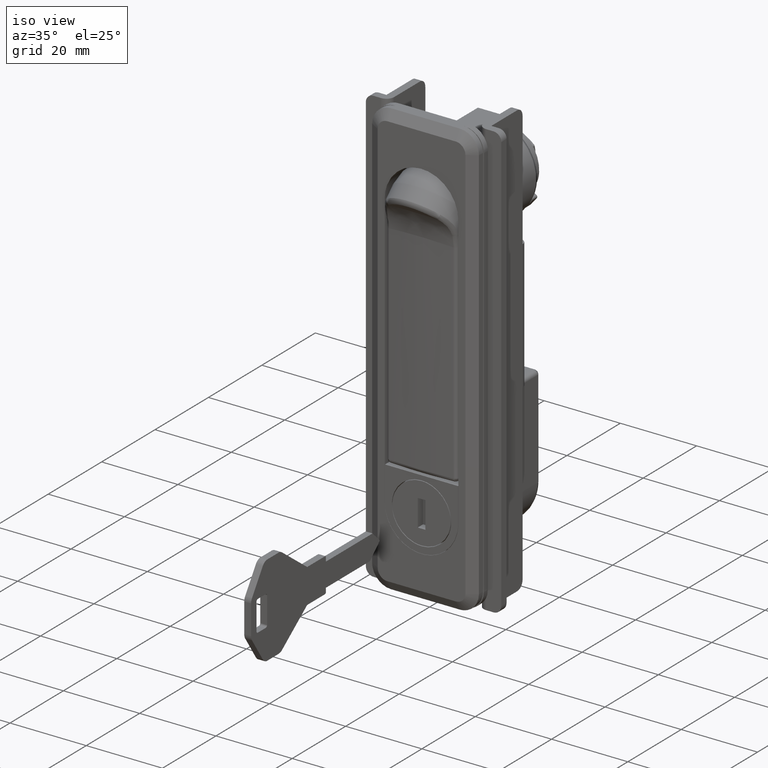
[diagram: clean part render]
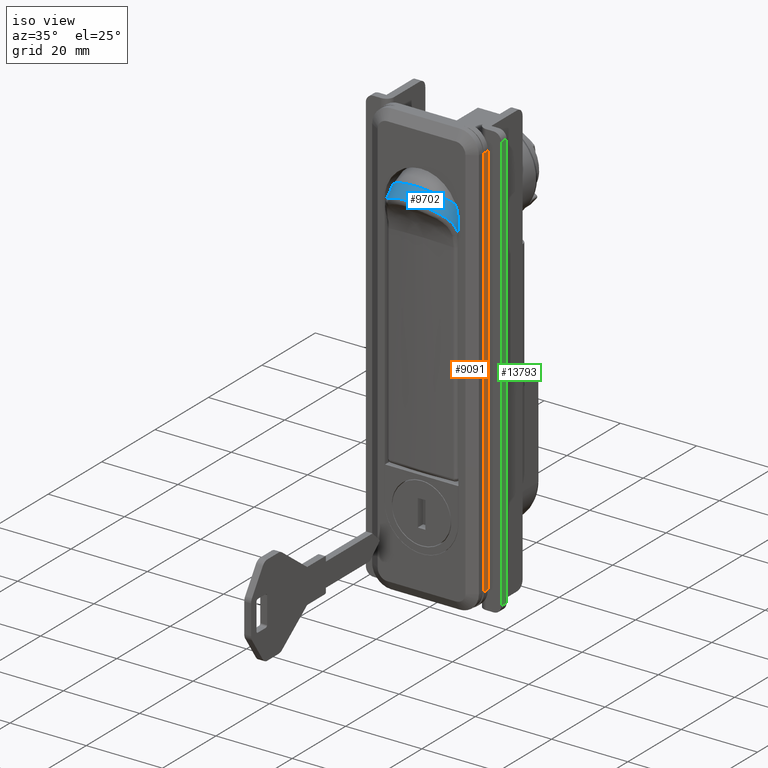
[diagram: same view with three faces highlighted in distinct colors, each labeled with its STEP entity id]
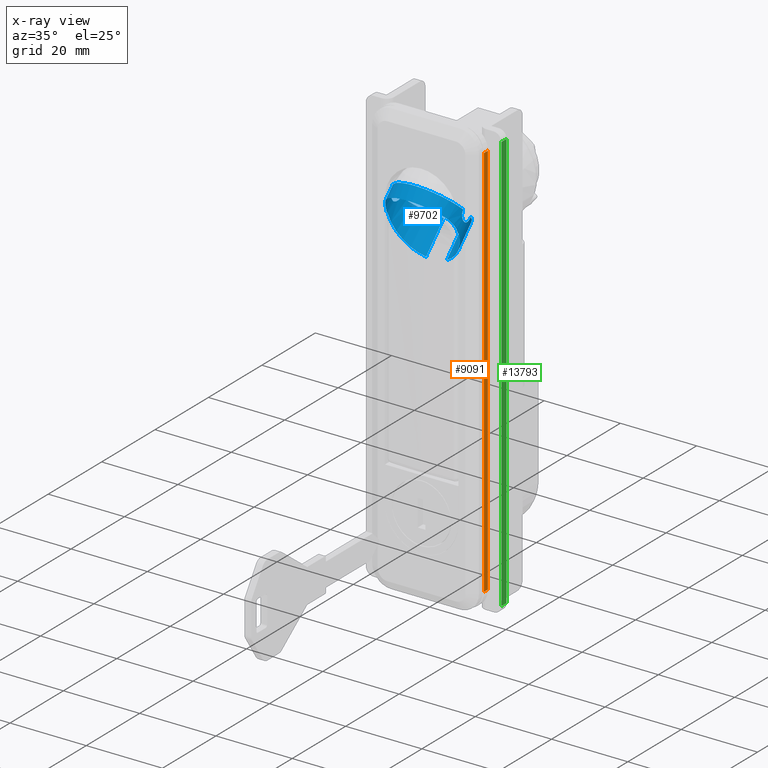
[diagram: x-ray of the same camera — body ghosted, the three highlighted faces saturated]
A machine part, iso view with three faces highlighted in distinct colors.
The next image is the same camera in x-ray (body ghosted, the three faces saturated) — at least one of them is partly hidden behind the body in this view.
Their STEP definitions:

[orange] entity #9091 — the highlighted face is a freeform B-spline surface patch.
#8704=CARTESIAN_POINT('',(0.0,-14.250000000000000,-88.0));
#8705=VERTEX_POINT('',#8704);
#8719=CARTESIAN_POINT('',(0.0,-14.250000000000000,16.0));
#8720=VERTEX_POINT('',#8719);
#8721=CARTESIAN_POINT('',(0.0,-14.250000000000000,-88.0));
#8722=CARTESIAN_POINT('',(0.0,-14.250000000000000,16.0));
#8723=QUASI_UNIFORM_CURVE('',1,(#8721,#8722),.UNSPECIFIED.,.F.,.U.);
#8724=EDGE_CURVE('',#8705,#8720,#8723,.T.);
#8846=CARTESIAN_POINT('',(1.499999999999946,-14.250000000000000,16.0));
#8847=VERTEX_POINT('',#8846);
#8861=CARTESIAN_POINT('',(1.499999999999946,-14.250000000000000,-88.0));
#8862=VERTEX_POINT('',#8861);
#8863=CARTESIAN_POINT('',(1.499999999999946,-14.250000000000000,-88.0));
#8864=CARTESIAN_POINT('',(1.499999999999946,-14.250000000000000,16.0));
#8865=QUASI_UNIFORM_CURVE('',1,(#8863,#8864),.UNSPECIFIED.,.F.,.U.);
#8866=EDGE_CURVE('',#8862,#8847,#8865,.T.);
#9062=CARTESIAN_POINT('',(1.499999999999946,-14.250000000000000,16.0));
#9063=CARTESIAN_POINT('',(0.0,-14.250000000000000,16.0));
#9064=QUASI_UNIFORM_CURVE('',1,(#9062,#9063),.UNSPECIFIED.,.F.,.U.);
#9065=EDGE_CURVE('',#8847,#8720,#9064,.T.);
#9076=CARTESIAN_POINT('',(-0.074924997092706,-14.250000000000000,21.194799798427820));
#9077=CARTESIAN_POINT('',(-0.074924997092706,-14.250000000000000,-93.194802587925196));
#9078=CARTESIAN_POINT('',(1.574925037325788,-14.250000000000000,21.194799798427820));
#9079=CARTESIAN_POINT('',(1.574925037325788,-14.250000000000000,-93.194802587925196));
#9080=B_SPLINE_SURFACE_WITH_KNOTS('',1,1,((#9076,#9078),(#9077,#9079)),.UNSPECIFIED.,.F.,.F.,.U.,(2,2),(2,2),(0.0,114.389602386353000),(0.041708334948495,0.958291687403247),.UNSPECIFIED.);
#9081=ORIENTED_EDGE('',*,*,#8724,.F.);
#9082=CARTESIAN_POINT('',(1.499999999999946,-14.250000000000000,-88.0));
#9083=CARTESIAN_POINT('',(0.0,-14.250000000000000,-88.0));
#9084=QUASI_UNIFORM_CURVE('',1,(#9082,#9083),.UNSPECIFIED.,.F.,.U.);
#9085=EDGE_CURVE('',#8862,#8705,#9084,.T.);
#9086=ORIENTED_EDGE('',*,*,#9085,.F.);
#9087=ORIENTED_EDGE('',*,*,#8866,.T.);
#9088=ORIENTED_EDGE('',*,*,#9065,.T.);
#9089=EDGE_LOOP('',(#9081,#9086,#9087,#9088));
#9090=FACE_OUTER_BOUND('',#9089,.T.);
#9091=ADVANCED_FACE('',(#9090),#9080,.T.);

[blue] entity #9702 — the highlighted face is a freeform B-spline surface patch.
#9387=CARTESIAN_POINT('',(7.107031272560636,-4.102957534490658,-5.774739402814862));
#9388=CARTESIAN_POINT('',(5.613714619475577,-8.427459105602878,-4.281422749729739));
#9389=CARTESIAN_POINT('',(2.257349569334404,-9.221770374373113,-0.925057699588430));
#9390=CARTESIAN_POINT('',(-4.263426796929898,-10.764965489170446,5.595718666676138));
#9391=CARTESIAN_POINT('',(-5.354630527297022,-1.543195114797333,6.686922397043308));
#9392=CARTESIAN_POINT('',(-6.445834257664147,7.678575259575780,7.778126127410477));
#9393=CARTESIAN_POINT('',(0.074942108600155,9.221770374373113,1.257349761145908));
#9394=CARTESIAN_POINT('',(6.595718474864460,10.764965489170446,-5.263426605118660));
#9395=CARTESIAN_POINT('',(7.686922205231582,1.543195114797333,-6.354630335485830));
#9396=CARTESIAN_POINT('',(0.124748359535416,-4.102957534490658,-12.757022315839794));
#9397=CARTESIAN_POINT('',(-1.368568293549646,-8.427459105602878,-11.263705662754676));
#9398=CARTESIAN_POINT('',(-4.724933343690816,-9.221770374373113,-7.907340612613366));
#9399=CARTESIAN_POINT('',(-11.245709709955117,-10.764965489170446,-1.386564246348798));
#9400=CARTESIAN_POINT('',(-12.336913440322240,-1.543195114797333,-0.295360515981629));
#9401=CARTESIAN_POINT('',(-13.428117170689367,7.678575259575780,0.795843214385541));
#9402=CARTESIAN_POINT('',(-6.907340804425065,9.221770374373113,-5.724933151879029));
#9403=CARTESIAN_POINT('',(-0.386564438160763,10.764965489170446,-12.245709518143595));
#9404=CARTESIAN_POINT('',(0.704639292206362,1.543195114797333,-13.336913248510770));
#9412=(BOUNDED_SURFACE()B_SPLINE_SURFACE(2,1,((#9387,#9396),(#9388,#9397),(#9389,#9398),(#9390,#9399),(#9391,#9400),(#9392,#9401),(#9393,#9402),(#9394,#9403),(#9395,#9404)),.UNSPECIFIED.,.F.,.F.,.U.)B_SPLINE_SURFACE_WITH_KNOTS((3,2,2,2,3),(2,2),(0.0,9.294952339652253,24.786539572406010,40.278126805159758,55.769714037913523),(0.0,9.874439191925989),.UNSPECIFIED.)GEOMETRIC_REPRESENTATION_ITEM()RATIONAL_B_SPLINE_SURFACE(((0.859411254969543,0.859411254969543),(0.824264068711928,0.824264068711928),(1.0,1.0),(0.707106781186548,0.707106781186548),(1.0,1.0),(0.707106781186548,0.707106781186548),(1.0,1.0),(0.707106781186548,0.707106781186548),(1.0,1.0)))REPRESENTATION_ITEM('')SURFACE());
#9413=CARTESIAN_POINT('',(6.940885581951187,-4.102957703211384,-5.940885581950830));
#9414=VERTEX_POINT('',#9413);
#9415=CARTESIAN_POINT('',(2.414213868110610,-9.133592174295300,-1.414213868110250));
#9416=VERTEX_POINT('',#9415);
#9417=CARTESIAN_POINT('',(6.940885581951187,-4.102957703211384,-5.940885581950830));
#9418=CARTESIAN_POINT('',(5.537744956479290,-8.166318806782531,-4.537744956478933));
#9419=CARTESIAN_POINT('',(2.414213868110608,-9.133592174295295,-1.414213868110251));
#9427=(BOUNDED_CURVE()B_SPLINE_CURVE(2,(#9417,#9418,#9419),.UNSPECIFIED.,.F.,.U.)B_SPLINE_CURVE_WITH_KNOTS((3,3),(0.670450609474140,1.0),.UNSPECIFIED.)CURVE()GEOMETRIC_REPRESENTATION_ITEM()RATIONAL_B_SPLINE_CURVE((0.900720068208981,0.854386070989554,1.0))REPRESENTATION_ITEM(''));
#9428=EDGE_CURVE('',#9414,#9416,#9427,.T.);
#9429=ORIENTED_EDGE('',*,*,#9428,.T.);
#9430=CARTESIAN_POINT('',(-0.414213359725439,-9.133592182482891,1.414213359725796));
#9431=VERTEX_POINT('',#9430);
#9432=CARTESIAN_POINT('',(-0.414213359725439,-9.133592182482891,1.414213359725796));
#9433=CARTESIAN_POINT('',(-0.460471421108768,-9.133591952254783,1.367955205915982));
#9434=CARTESIAN_POINT('',(-0.504614501735331,-9.134294817080452,1.319284640765174));
#9435=CARTESIAN_POINT('',(-0.588523405306179,-9.137133099552951,1.216951137928965));
#9436=CARTESIAN_POINT('',(-0.627735265913289,-9.139252865465123,1.163941595100474));
#9437=CARTESIAN_POINT('',(-0.736659020870733,-9.147511513319266,1.000574124153922));
#9438=CARTESIAN_POINT('',(-0.798093647315284,-9.155562279719019,0.885491694042924));
#9439=CARTESIAN_POINT('',(-0.873340630487527,-9.170775495962458,0.703493131412030));
#9440=CARTESIAN_POINT('',(-0.895599579317377,-9.176389119083146,0.641081153403403));
#9441=CARTESIAN_POINT('',(-0.933461384160538,-9.188261295152771,0.515761427234172));
#9442=CARTESIAN_POINT('',(-0.964964838712931,-9.200826246580741,0.389321836350614));
#9443=CARTESIAN_POINT('',(-0.984014128425927,-9.214390760109156,0.260652434712104));
#9444=CARTESIAN_POINT('',(-0.996780671376547,-9.228265251531013,0.130838418006757));
#9445=CARTESIAN_POINT('',(-1.000018911170903,-9.235390842854512,0.065053918924386));
#9446=CARTESIAN_POINT('',(-0.999960467632207,-9.256699182384180,-0.131888365669197));
#9447=CARTESIAN_POINT('',(-0.987122782937561,-9.270657931108158,-0.261282599531130));
#9448=CARTESIAN_POINT('',(-0.949173770381768,-9.290089996629952,-0.452715805698449));
#9449=CARTESIAN_POINT('',(-0.933385461188149,-9.296317278745793,-0.516080259273553));
#9450=CARTESIAN_POINT('',(-0.904843865665895,-9.305139396017477,-0.610449032395854));
#9451=CARTESIAN_POINT('',(-0.894491712444008,-9.307998906566981,-0.641856900761940));
#9452=CARTESIAN_POINT('',(-0.872370858683394,-9.313462756018529,-0.703780163438875));
#9453=CARTESIAN_POINT('',(-0.860584824732329,-9.316073888479348,-0.734364659806713));
#9454=CARTESIAN_POINT('',(-0.798084988514233,-9.328490208434053,-0.885434827013450));
#9455=CARTESIAN_POINT('',(-0.736765074323494,-9.336378104617072,-1.000418128581239));
#9456=CARTESIAN_POINT('',(-0.627660641663319,-9.344472881953212,-1.164051985115768));
#9457=CARTESIAN_POINT('',(-0.588244074227732,-9.346552346939205,-1.217314507201871));
#9458=CARTESIAN_POINT('',(-0.504339985946233,-9.349319229085879,-1.319596580899366));
#9459=CARTESIAN_POINT('',(-0.459913637980279,-9.350011722931695,-1.368590488650666));
#9460=CARTESIAN_POINT('',(-0.319256888622417,-9.349976103684744,-1.509011810071665));
#9461=CARTESIAN_POINT('',(-0.217886813742805,-9.347139566546289,-1.591790873036654));
#9462=CARTESIAN_POINT('',(-0.054919479280349,-9.339072423551686,-1.700413416651352));
#9463=CARTESIAN_POINT('',(0.001235463243762,-9.335747363732134,-1.734010520752055));
#9464=CARTESIAN_POINT('',(0.117293552208892,-9.327890298216486,-1.795870965536230));
#9465=CARTESIAN_POINT('',(0.177299054478293,-9.323344398660202,-1.824130719537319));
#9466=CARTESIAN_POINT('',(0.358978040799495,-9.308380924964443,-1.899013510434090));
#9467=CARTESIAN_POINT('',(0.483568235813575,-9.296560017001303,-1.936580834269289));
#9468=CARTESIAN_POINT('',(0.643669903907163,-9.280305376029634,-1.968271829216322));
#9469=CARTESIAN_POINT('',(0.675910514553652,-9.276980506264225,-1.973839557065862));
#9470=CARTESIAN_POINT('',(0.740841484671853,-9.270204102434436,-1.983409568932776));
#9471=CARTESIAN_POINT('',(0.773603978818678,-9.266744772655578,-1.987415747725484));
#9472=CARTESIAN_POINT('',(0.871581765009371,-9.256317208746044,-1.996951565982837));
#9473=CARTESIAN_POINT('',(0.936737798156744,-9.249274208841586,-2.000055985685856));
#9474=CARTESIAN_POINT('',(1.131763407651775,-9.228172674522993,-1.999885742626590));
#9475=CARTESIAN_POINT('',(1.261194439437405,-9.214136819165578,-1.987222427353137));
#9476=CARTESIAN_POINT('',(1.454560755308360,-9.194339755592941,-1.948767244357713));
#9477=CARTESIAN_POINT('',(1.518492369122235,-9.187994679538043,-1.932725497319438));
#9478=CARTESIAN_POINT('',(1.643425817448796,-9.176174943570196,-1.894799599611841));
#9479=CARTESIAN_POINT('',(1.766015895964191,-9.165164791177769,-1.850920764088506));
#9480=CARTESIAN_POINT('',(1.883984429881291,-9.156078406281294,-1.795234406280155));
#9481=CARTESIAN_POINT('',(1.999604193297977,-9.148109015128423,-1.733518564639712));
#9482=CARTESIAN_POINT('',(2.056554786249562,-9.144669137196123,-1.699419912350273));
#9483=CARTESIAN_POINT('',(2.220778899139755,-9.136404486986690,-1.589666695209347));
#9484=CARTESIAN_POINT('',(2.321696405324247,-9.133591746051042,-1.506731169828914));
#9485=CARTESIAN_POINT('',(2.414213868110610,-9.133592174295300,-1.414213868110250));
#9486=B_SPLINE_CURVE_WITH_KNOTS('',3,(#9432,#9433,#9434,#9435,#9436,#9437,#9438,#9439,#9440,#9441,#9442,#9443,#9444,#9445,#9446,#9447,#9448,#9449,#9450,#9451,#9452,#9453,#9454,#9455,#9456,#9457,#9458,#9459,#9460,#9461,#9462,#9463,#9464,#9465,#9466,#9467,#9468,#9469,#9470,#9471,#9472,#9473,#9474,#9475,#9476,#9477,#9478,#9479,#9480,#9481,#9482,#9483,#9484,#9485),.UNSPECIFIED.,.F.,.U.,(4,2,2,2,2,1,2,2,2,2,2,2,2,2,2,2,2,2,2,2,2,2,2,2,1,2,2,4),(0.0,0.031250000000000,0.062500000000000,0.125000000000001,0.156250000000001,0.187500000000001,0.218750000000001,0.250000000000001,0.312500000000001,0.343750000000001,0.359375000000001,0.375000000000001,0.437500000000002,0.468750000000002,0.500000000000002,0.562500000000002,0.593750000000002,0.625000000000002,0.687500000000002,0.703125000000002,0.718750000000002,0.750000000000002,0.812500000000001,0.843750000000001,0.875000000000001,0.906250000000001,0.937500000000001,1.0),.UNSPECIFIED.);
#9487=EDGE_CURVE('',#9431,#9416,#9486,.T.);
#9488=ORIENTED_EDGE('',*,*,#9487,.F.);
#9489=CARTESIAN_POINT('',(-0.414213321400329,9.133591949812070,1.414213321400474));
#9490=VERTEX_POINT('',#9489);
#9491=CARTESIAN_POINT('',(-0.414213321400329,9.133591949812070,1.414213321400474));
#9492=CARTESIAN_POINT('',(-5.611448451143156,7.524148695961170,6.611448451143511));
#9493=CARTESIAN_POINT('',(-5.611448452046887,1.588215E-009,6.611448452047243));
#9494=CARTESIAN_POINT('',(-5.611448452950619,-7.524148692784750,6.611448452950975));
#9495=CARTESIAN_POINT('',(-0.414213359725439,-9.133592182482891,1.414213359725796));
#9503=(BOUNDED_CURVE()B_SPLINE_CURVE(2,(#9491,#9492,#9493,#9494,#9495),.UNSPECIFIED.,.F.,.U.)B_SPLINE_CURVE_WITH_KNOTS((3,2,3),(0.0,0.500000000000000,1.0),.UNSPECIFIED.)CURVE()GEOMETRIC_REPRESENTATION_ITEM()RATIONAL_B_SPLINE_CURVE((1.0,0.779071145483128,1.0,0.779071145483128,1.0))REPRESENTATION_ITEM(''));
#9504=EDGE_CURVE('',#9490,#9431,#9503,.T.);
#9505=ORIENTED_EDGE('',*,*,#9504,.F.);
#9506=CARTESIAN_POINT('',(2.414213868110610,9.133592174295300,-1.414213868110250));
#9507=VERTEX_POINT('',#9506);
#9508=CARTESIAN_POINT('',(2.414213868110610,9.133592174295300,-1.414213868110250));
#9509=CARTESIAN_POINT('',(2.367955103226896,9.133591743607900,-1.460472487705086));
#9510=CARTESIAN_POINT('',(2.319283891190668,9.134294626555160,-1.504616101054610));
#9511=CARTESIAN_POINT('',(2.216948962416216,9.137132982776999,-1.588525958661796));
#9512=CARTESIAN_POINT('',(2.163938718602405,9.139252801307000,-1.627738181918827));
#9513=CARTESIAN_POINT('',(2.000568957228810,9.147511653540825,-1.736662879428226));
#9514=CARTESIAN_POINT('',(1.885484845064934,9.155562616163481,-1.798097866390851));
#9515=CARTESIAN_POINT('',(1.703483498314225,9.170776191602158,-1.873344941352954));
#9516=CARTESIAN_POINT('',(1.641070635302484,9.176389937869889,-1.895603808088241));
#9517=CARTESIAN_POINT('',(1.515749193849271,9.188262357209950,-1.933465284129359));
#9518=CARTESIAN_POINT('',(1.389307858092928,9.200827557612893,-1.964968265786341));
#9519=CARTESIAN_POINT('',(1.260636647784606,9.214392318273690,-1.984016776293791));
#9520=CARTESIAN_POINT('',(1.130820786320530,9.228267048705751,-1.996782368592477));
#9521=CARTESIAN_POINT('',(1.065035249929298,9.235392765973531,-2.000020039768987));
#9522=CARTESIAN_POINT('',(0.868090788036909,9.256701350625219,-1.999959638280248));
#9523=CARTESIAN_POINT('',(0.738695130902726,9.270660218539911,-1.987120386490184));
#9524=CARTESIAN_POINT('',(0.547259845840076,9.290092356898208,-1.949168513915894));
#9525=CARTESIAN_POINT('',(0.483894708746180,9.296319645543514,-1.933379165609851));
#9526=CARTESIAN_POINT('',(0.389524927736451,9.305141739513767,-1.904835856313950));
#9527=CARTESIAN_POINT('',(0.358116805429239,9.308001229211079,-1.894483128542005));
#9528=CARTESIAN_POINT('',(0.296193204736583,9.313465013113213,-1.872361155080965));
#9529=CARTESIAN_POINT('',(0.265608546026318,9.316076107750472,-1.860574547164415));
#9530=CARTESIAN_POINT('',(0.114537603790058,9.328492212221150,-1.798071764138572));
#9531=CARTESIAN_POINT('',(-0.000446203049111,9.336379852295423,-1.736749251329361));
#9532=CARTESIAN_POINT('',(-0.164080555014954,9.344474091538904,-1.627640384810734));
#9533=CARTESIAN_POINT('',(-0.217343224835563,9.346553349366578,-1.588222208657395));
#9534=CARTESIAN_POINT('',(-0.319624949117949,9.349319756811669,-1.504315195097979));
#9535=CARTESIAN_POINT('',(-0.368619996733159,9.350011992730716,-1.459885957156416));
#9536=CARTESIAN_POINT('',(-0.509036251500612,9.349975542816845,-1.319228648625208));
#9537=CARTESIAN_POINT('',(-0.591812312845454,9.347138551239741,-1.217858472442598));
#9538=CARTESIAN_POINT('',(-0.700430716195058,9.339070856503904,-1.054891249622808));
#9539=CARTESIAN_POINT('',(-0.734026502016925,9.335745634537604,-0.998736389286827));
#9540=CARTESIAN_POINT('',(-0.795884412092778,9.327888286145592,-0.882678539311256));
#9541=CARTESIAN_POINT('',(-0.824142814614935,9.323342285855025,-0.822673466015974));
#9542=CARTESIAN_POINT('',(-0.899021836604427,9.308378599635333,-0.640995964058720));
#9543=CARTESIAN_POINT('',(-0.936587018296682,9.296557646944532,-0.516406865211420));
#9544=CARTESIAN_POINT('',(-0.968275669890666,9.280303039310470,-0.356306665524123));
#9545=CARTESIAN_POINT('',(-0.973842946144116,9.276978180720855,-0.324066353573832));
#9546=CARTESIAN_POINT('',(-0.983412086993763,9.270201807612537,-0.259135990369861));
#9547=CARTESIAN_POINT('',(-0.987417837308038,9.266742503236817,-0.226373860455286));
#9548=CARTESIAN_POINT('',(-0.996952426938288,9.256315046751702,-0.128397357085556));
#9549=CARTESIAN_POINT('',(-1.000056124824040,9.249272132301046,-0.063242174691249));
#9550=CARTESIAN_POINT('',(-0.999883966734452,9.228170883256261,0.131780892753446));
#9551=CARTESIAN_POINT('',(-0.987219704823989,9.214135256475833,0.261210243300165));
#9552=CARTESIAN_POINT('',(-0.948763523597763,9.194338551192598,0.454574049167681));
#9553=CARTESIAN_POINT('',(-0.932721568835529,9.187993617012866,0.518504627009796));
#9554=CARTESIAN_POINT('',(-0.894795395359920,9.176174138045194,0.643436210631766));
#9555=CARTESIAN_POINT('',(-0.850916442693726,9.165164231670957,0.766024484298118));
#9556=CARTESIAN_POINT('',(-0.795230263398114,9.156078058961906,0.883991323367068));
#9557=CARTESIAN_POINT('',(-0.733514745937342,9.148108857285935,0.999609445490350));
#9558=CARTESIAN_POINT('',(-0.699416333114273,9.144669063746630,1.056559233363503));
#9559=CARTESIAN_POINT('',(-0.589664119469018,9.136404623116897,1.220780960968154));
#9560=CARTESIAN_POINT('',(-0.506729518769714,9.133591954693804,1.321697092502792));
#9561=CARTESIAN_POINT('',(-0.414213321400329,9.133591949812072,1.414213321400474));
#9562=B_SPLINE_CURVE_WITH_KNOTS('',3,(#9508,#9509,#9510,#9511,#9512,#9513,#9514,#9515,#9516,#9517,#9518,#9519,#9520,#9521,#9522,#9523,#9524,#9525,#9526,#9527,#9528,#9529,#9530,#9531,#9532,#9533,#9534,#9535,#9536,#9537,#9538,#9539,#9540,#9541,#9542,#9543,#9544,#9545,#9546,#9547,#9548,#9549,#9550,#9551,#9552,#9553,#9554,#9555,#9556,#9557,#9558,#9559,#9560,#9561),.UNSPECIFIED.,.F.,.U.,(4,2,2,2,2,1,2,2,2,2,2,2,2,2,2,2,2,2,2,2,2,2,2,2,1,2,2,4),(0.0,0.031250000000000,0.062500000000000,0.124999999999999,0.156249999999999,0.187499999999999,0.218749999999999,0.249999999999999,0.312499999999999,0.343749999999999,0.359374999999999,0.374999999999999,0.437499999999999,0.468749999999999,0.499999999999999,0.562499999999999,0.593749999999999,0.624999999999999,0.687500000000000,0.703125000000000,0.718750000000000,0.750000000000000,0.812500000000000,0.843750000000000,0.875000000000000,0.906250000000000,0.937500000000000,1.0),.UNSPECIFIED.);
#9563=EDGE_CURVE('',#9507,#9490,#9562,.T.);
#9564=ORIENTED_EDGE('',*,*,#9563,.F.);
#9565=CARTESIAN_POINT('',(7.520776553025343,1.543195181851260,-6.520776553024986));
#9566=VERTEX_POINT('',#9565);
#9567=CARTESIAN_POINT('',(2.414213868110608,9.133592174295295,-1.414213868110251));
#9568=CARTESIAN_POINT('',(6.782687427572426,7.780793687196534,-5.782687427572068));
#9569=CARTESIAN_POINT('',(7.520776553025343,1.543195181851260,-6.520776553024986));
#9577=(BOUNDED_CURVE()B_SPLINE_CURVE(2,(#9567,#9568,#9569),.UNSPECIFIED.,.F.,.U.)B_SPLINE_CURVE_WITH_KNOTS((3,3),(0.0,0.435615634405700),.UNSPECIFIED.)CURVE()GEOMETRIC_REPRESENTATION_ITEM()RATIONAL_B_SPLINE_CURVE((1.0,0.807519886585211,0.950429160033080))REPRESENTATION_ITEM(''));
#9578=EDGE_CURVE('',#9507,#9566,#9577,.T.);
#9579=ORIENTED_EDGE('',*,*,#9578,.T.);
#9580=CARTESIAN_POINT('',(0.919062706029005,1.543195114875015,-13.122489834669750));
#9581=VERTEX_POINT('',#9580);
#9582=CARTESIAN_POINT('',(7.520776553025343,1.543195181851260,-6.520776553024986));
#9583=CARTESIAN_POINT('',(0.919062706029005,1.543195114875015,-13.122489834669750));
#9584=QUASI_UNIFORM_CURVE('',1,(#9582,#9583),.UNSPECIFIED.,.F.,.U.);
#9585=EDGE_CURVE('',#9566,#9581,#9584,.T.);
#9586=ORIENTED_EDGE('',*,*,#9585,.T.);
#9587=CARTESIAN_POINT('',(-2.428501294168990,9.350000000000001,-3.428501102357380));
#9588=VERTEX_POINT('',#9587);
#9589=CARTESIAN_POINT('',(-2.428501294168990,9.349999999999996,-3.428501102357378));
#9590=CARTESIAN_POINT('',(0.444826785569908,9.349999999999996,-11.749181462017434));
#9591=CARTESIAN_POINT('',(0.919062706029005,1.543195114875015,-13.122489834669750));
#9599=(BOUNDED_CURVE()B_SPLINE_CURVE(2,(#9589,#9590,#9591),.UNSPECIFIED.,.F.,.U.)B_SPLINE_CURVE_WITH_KNOTS((3,3),(0.0,0.443198963511575),.UNSPECIFIED.)CURVE()GEOMETRIC_REPRESENTATION_ITEM()RATIONAL_B_SPLINE_CURVE((1.0,0.740380058004618,0.941013272806390))REPRESENTATION_ITEM(''));
#9600=EDGE_CURVE('',#9588,#9581,#9599,.T.);
#9601=ORIENTED_EDGE('',*,*,#9600,.F.);
#9602=CARTESIAN_POINT('',(-2.553220445207840,9.350000000000001,-3.553220253396225));
#9603=VERTEX_POINT('',#9602);
#9604=CARTESIAN_POINT('',(-2.553220445207840,9.350000000000001,-3.553220253396225));
#9605=CARTESIAN_POINT('',(-2.428501294168990,9.350000000000001,-3.428501102357380));
#9606=QUASI_UNIFORM_CURVE('',1,(#9604,#9605),.UNSPECIFIED.,.F.,.U.);
#9607=EDGE_CURVE('',#9603,#9588,#9606,.T.);
#9608=ORIENTED_EDGE('',*,*,#9607,.F.);
#9609=CARTESIAN_POINT('',(-5.992869304071120,6.982232603352220,1.801552741698260));
#9610=VERTEX_POINT('',#9609);
#9611=CARTESIAN_POINT('',(-2.553220445207840,9.350000000000001,-3.553220253396225));
#9612=CARTESIAN_POINT('',(-2.745604972575772,9.350000000000000,-2.997942305194927));
#9613=CARTESIAN_POINT('',(-2.974557667330325,9.305385063437523,-2.465958331060052));
#9614=CARTESIAN_POINT('',(-3.363726800821381,9.162478176331421,-1.699932178016773));
#9615=CARTESIAN_POINT('',(-3.501108156392323,9.102138185817633,-1.449937035108215));
#9616=CARTESIAN_POINT('',(-3.717758201009574,8.990898375016320,-1.082773331467944));
#9617=CARTESIAN_POINT('',(-3.791295157255611,8.950577910243046,-0.962454146364693));
#9618=CARTESIAN_POINT('',(-3.940086965382921,8.863804004567175,-0.726813816623563));
#9619=CARTESIAN_POINT('',(-4.015442725391934,8.817299218833107,-0.611321508208160));
#9620=CARTESIAN_POINT('',(-4.396349840348980,8.569170316004778,-0.045027498775739));
#9621=CARTESIAN_POINT('',(-4.714225209028258,8.321075490911424,0.372496378915254));
#9622=CARTESIAN_POINT('',(-5.118267223975285,7.945427779891333,0.855117407215499));
#9623=CARTESIAN_POINT('',(-5.199310783774836,7.867078239597817,0.949531348628556));
#9624=CARTESIAN_POINT('',(-5.360402020731176,7.705124907931193,1.132920628697462));
#9625=CARTESIAN_POINT('',(-5.440621087449544,7.621364439049686,1.222102354431966));
#9626=CARTESIAN_POINT('',(-5.679956578185752,7.361758589611587,1.482451265029816));
#9627=CARTESIAN_POINT('',(-5.837754210463979,7.177606726013670,1.646437648090944));
#9628=CARTESIAN_POINT('',(-5.992869304071120,6.982232603352220,1.801552741698260));
#9629=B_SPLINE_CURVE_WITH_KNOTS('',3,(#9611,#9612,#9613,#9614,#9615,#9616,#9617,#9618,#9619,#9620,#9621,#9622,#9623,#9624,#9625,#9626,#9627,#9628),.UNSPECIFIED.,.F.,.U.,(4,2,2,2,2,2,2,2,4),(0.0,0.250000000000000,0.374999999999999,0.437499999999999,0.499999999999999,0.749999999999999,0.812499999999999,0.874999999999999,1.0),.UNSPECIFIED.);
#9630=EDGE_CURVE('',#9603,#9610,#9629,.T.);
#9631=ORIENTED_EDGE('',*,*,#9630,.T.);
#9632=CARTESIAN_POINT('',(-5.992869304071120,-6.982232603352220,1.801552741698260));
#9633=VERTEX_POINT('',#9632);
#9634=CARTESIAN_POINT('',(-5.992869304071116,6.982232603352221,1.801552741698259));
#9635=CARTESIAN_POINT('',(-8.207106781186557,4.193305398428361,4.015790218813463));
#9636=CARTESIAN_POINT('',(-8.207106781186555,0.0,4.015790218813461));
#9637=CARTESIAN_POINT('',(-8.207106781186557,-4.193305398428359,4.015790218813463));
#9638=CARTESIAN_POINT('',(-5.992869304071118,-6.982232603352219,1.801552741698261));
#9646=(BOUNDED_CURVE()B_SPLINE_CURVE(2,(#9634,#9635,#9636,#9637,#9638),.UNSPECIFIED.,.F.,.U.)B_SPLINE_CURVE_WITH_KNOTS((3,2,3),(0.0,0.500000000000000,1.0),.UNSPECIFIED.)CURVE()GEOMETRIC_REPRESENTATION_ITEM()RATIONAL_B_SPLINE_CURVE((1.0,0.912439151280074,1.0,0.912439151280074,1.0))REPRESENTATION_ITEM(''));
#9647=EDGE_CURVE('',#9610,#9633,#9646,.T.);
#9648=ORIENTED_EDGE('',*,*,#9647,.T.);
#9649=CARTESIAN_POINT('',(-2.553220445207840,-9.350000000000001,-3.553220253396225));
#9650=VERTEX_POINT('',#9649);
#9651=CARTESIAN_POINT('',(-5.992869304071120,-6.982232603352220,1.801552741698260));
#9652=CARTESIAN_POINT('',(-5.682656613216357,-7.372958811258717,1.491340050843333));
#9653=CARTESIAN_POINT('',(-5.363766112813792,-7.716563267530630,1.147869659532126));
#9654=CARTESIAN_POINT('',(-4.883708348516811,-8.163802997478351,0.575179738382884));
#9655=CARTESIAN_POINT('',(-4.723391654737784,-8.301450497014223,0.374649764371497));
#9656=CARTESIAN_POINT('',(-4.523846903901022,-8.458957049888928,0.110660407098530));
#9657=CARTESIAN_POINT('',(-4.483922319746920,-8.489772699663506,0.057113857114174));
#9658=CARTESIAN_POINT('',(-4.404579340192099,-8.549644892759067,-0.050822972857137));
#9659=CARTESIAN_POINT('',(-4.286279077804755,-8.636856866629710,-0.214046103113186));
#9660=CARTESIAN_POINT('',(-4.170242578232529,-8.716405555398580,-0.381253939537003));
#9661=CARTESIAN_POINT('',(-3.789029768970548,-8.965002391936842,-0.947642388498576));
#9662=CARTESIAN_POINT('',(-3.501777319872958,-9.111167183766147,-1.429469556652468));
#9663=CARTESIAN_POINT('',(-3.174493339849331,-9.232112325802119,-2.072112461245756));
#9664=CARTESIAN_POINT('',(-3.110494262433220,-9.253230685595302,-2.202983454983172));
#9665=CARTESIAN_POINT('',(-2.986956823638326,-9.289033774834886,-2.466806622646069));
#9666=CARTESIAN_POINT('',(-2.927356639205748,-9.303754650077917,-2.599852168157549));
#9667=CARTESIAN_POINT('',(-2.755261340831739,-9.338793800478388,-3.002442538315555));
#9668=CARTESIAN_POINT('',(-2.649462814066685,-9.350000000000000,-3.275436661123390));
#9669=CARTESIAN_POINT('',(-2.553220445207835,-9.350000000000001,-3.553220253396220));
#9670=B_SPLINE_CURVE_WITH_KNOTS('',3,(#9651,#9652,#9653,#9654,#9655,#9656,#9657,#9658,#9659,#9660,#9661,#9662,#9663,#9664,#9665,#9666,#9667,#9668,#9669),.UNSPECIFIED.,.F.,.U.,(4,2,2,2,1,2,2,2,2,4),(0.0,0.250000000000000,0.375000000000000,0.406250000000000,0.437500000000000,0.500000000000000,0.750000000000000,0.812500000000000,0.875000000000000,1.0),.UNSPECIFIED.);
#9671=EDGE_CURVE('',#9633,#9650,#9670,.T.);
#9672=ORIENTED_EDGE('',*,*,#9671,.T.);
#9673=CARTESIAN_POINT('',(-2.428501294168990,-9.350000000000001,-3.428501102357380));
#9674=VERTEX_POINT('',#9673);
#9675=CARTESIAN_POINT('',(-2.428501294168990,-9.350000000000001,-3.428501102357380));
#9676=CARTESIAN_POINT('',(-2.553220445207840,-9.350000000000001,-3.553220253396225));
#9677=QUASI_UNIFORM_CURVE('',1,(#9675,#9676),.UNSPECIFIED.,.F.,.U.);
#9678=EDGE_CURVE('',#9674,#9650,#9677,.T.);
#9679=ORIENTED_EDGE('',*,*,#9678,.F.);
#9680=CARTESIAN_POINT('',(0.621364717126417,-4.102957534656863,-12.260405958134029));
#9681=VERTEX_POINT('',#9680);
#9682=CARTESIAN_POINT('',(0.621364717126417,-4.102957534656863,-12.260405958134029));
#9683=CARTESIAN_POINT('',(-0.308800319015929,-9.350000000000007,-9.566802675601693));
#9684=CARTESIAN_POINT('',(-2.428501294168989,-9.350000000000007,-3.428501102357383));
#9692=(BOUNDED_CURVE()B_SPLINE_CURVE(2,(#9682,#9683,#9684),.UNSPECIFIED.,.F.,.U.)B_SPLINE_CURVE_WITH_KNOTS((3,3),(0.649154389892608,1.0),.UNSPECIFIED.)CURVE()GEOMETRIC_REPRESENTATION_ITEM()RATIONAL_B_SPLINE_CURVE((0.877382801125785,0.794479399898153,1.0))REPRESENTATION_ITEM(''));
#9693=EDGE_CURVE('',#9681,#9674,#9692,.T.);
#9694=ORIENTED_EDGE('',*,*,#9693,.F.);
#9695=CARTESIAN_POINT('',(6.940885581951187,-4.102957703211384,-5.940885581950830));
#9696=CARTESIAN_POINT('',(0.621364717126417,-4.102957534656863,-12.260405958134029));
#9697=QUASI_UNIFORM_CURVE('',1,(#9695,#9696),.UNSPECIFIED.,.F.,.U.);
#9698=EDGE_CURVE('',#9414,#9681,#9697,.T.);
#9699=ORIENTED_EDGE('',*,*,#9698,.F.);
#9700=EDGE_LOOP('',(#9429,#9488,#9505,#9564,#9579,#9586,#9601,#9608,#9631,#9648,#9672,#9679,#9694,#9699));
#9701=FACE_OUTER_BOUND('',#9700,.T.);
#9702=ADVANCED_FACE('',(#9701),#9412,.T.);

[green] entity #13793 — the highlighted face is a freeform B-spline surface patch.
#12946=CARTESIAN_POINT('',(141.959579999999990,-17.750004999999948,19.0));
#12947=VERTEX_POINT('',#12946);
#12968=CARTESIAN_POINT('',(139.959579999999990,-17.750004999999948,19.0));
#12969=VERTEX_POINT('',#12968);
#12983=CARTESIAN_POINT('',(141.959579999999990,-17.750004999999948,19.0));
#12984=CARTESIAN_POINT('',(139.959579999999990,-17.750004999999948,19.0));
#12985=QUASI_UNIFORM_CURVE('',1,(#12983,#12984),.UNSPECIFIED.,.F.,.U.);
#12986=EDGE_CURVE('',#12947,#12969,#12985,.T.);
#13005=CARTESIAN_POINT('',(141.959579999999990,-17.750004999999948,-91.0));
#13006=VERTEX_POINT('',#13005);
#13022=CARTESIAN_POINT('',(139.959579999999990,-17.750004999999948,-91.0));
#13023=VERTEX_POINT('',#13022);
#13024=CARTESIAN_POINT('',(139.959579999999990,-17.750004999999948,-91.0));
#13025=CARTESIAN_POINT('',(141.959579999999990,-17.750004999999948,-91.0));
#13026=QUASI_UNIFORM_CURVE('',1,(#13024,#13025),.UNSPECIFIED.,.F.,.U.);
#13027=EDGE_CURVE('',#13023,#13006,#13026,.T.);
#13761=CARTESIAN_POINT('',(141.959579999999990,-17.750004999999948,-91.0));
#13762=CARTESIAN_POINT('',(141.959579999999990,-17.750004999999948,19.0));
#13763=QUASI_UNIFORM_CURVE('',1,(#13761,#13762),.UNSPECIFIED.,.F.,.U.);
#13764=EDGE_CURVE('',#13006,#12947,#13763,.T.);
#13778=CARTESIAN_POINT('',(139.859679469220910,-17.750004999999948,-96.494499786798656));
#13779=CARTESIAN_POINT('',(139.859679469220910,-17.750004999999948,24.494502737228569));
#13780=CARTESIAN_POINT('',(142.059479475776900,-17.750004999999948,-96.494499786798656));
#13781=CARTESIAN_POINT('',(142.059479475776900,-17.750004999999948,24.494502737228569));
#13782=B_SPLINE_SURFACE_WITH_KNOTS('',1,1,((#13778,#13780),(#13779,#13781)),.UNSPECIFIED.,.F.,.F.,.U.,(2,2),(2,2),(0.0,120.989002524027200),(0.0,2.199800006555989),.UNSPECIFIED.);
#13783=CARTESIAN_POINT('',(139.959579999999990,-17.750004999999948,-91.0));
#13784=CARTESIAN_POINT('',(139.959579999999990,-17.750004999999948,19.0));
#13785=QUASI_UNIFORM_CURVE('',1,(#13783,#13784),.UNSPECIFIED.,.F.,.U.);
#13786=EDGE_CURVE('',#13023,#12969,#13785,.T.);
#13787=ORIENTED_EDGE('',*,*,#13786,.F.);
#13788=ORIENTED_EDGE('',*,*,#13027,.T.);
#13789=ORIENTED_EDGE('',*,*,#13764,.T.);
#13790=ORIENTED_EDGE('',*,*,#12986,.T.);
#13791=EDGE_LOOP('',(#13787,#13788,#13789,#13790));
#13792=FACE_OUTER_BOUND('',#13791,.T.);
#13793=ADVANCED_FACE('',(#13792),#13782,.F.);